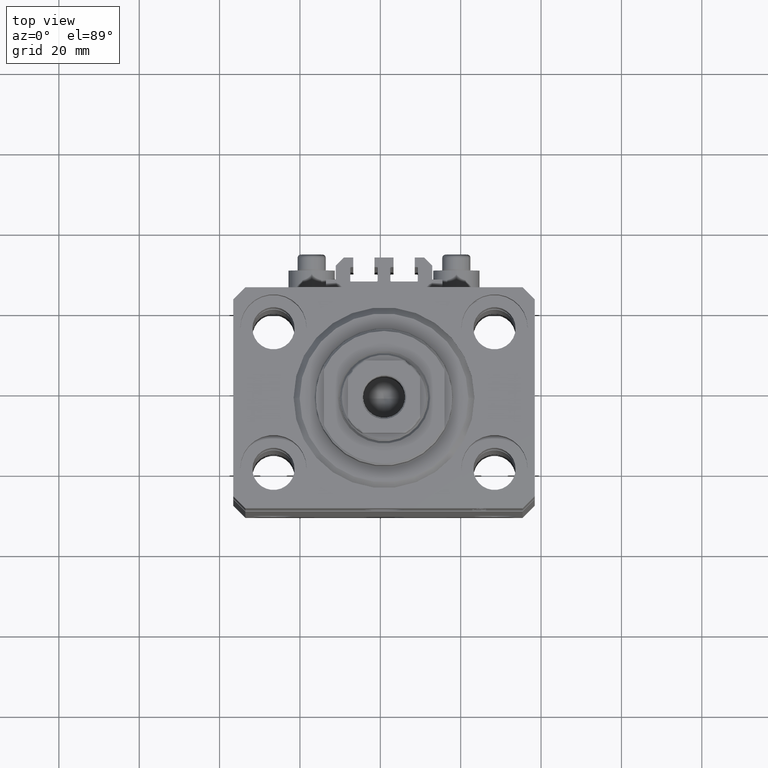
[diagram: clean part render]
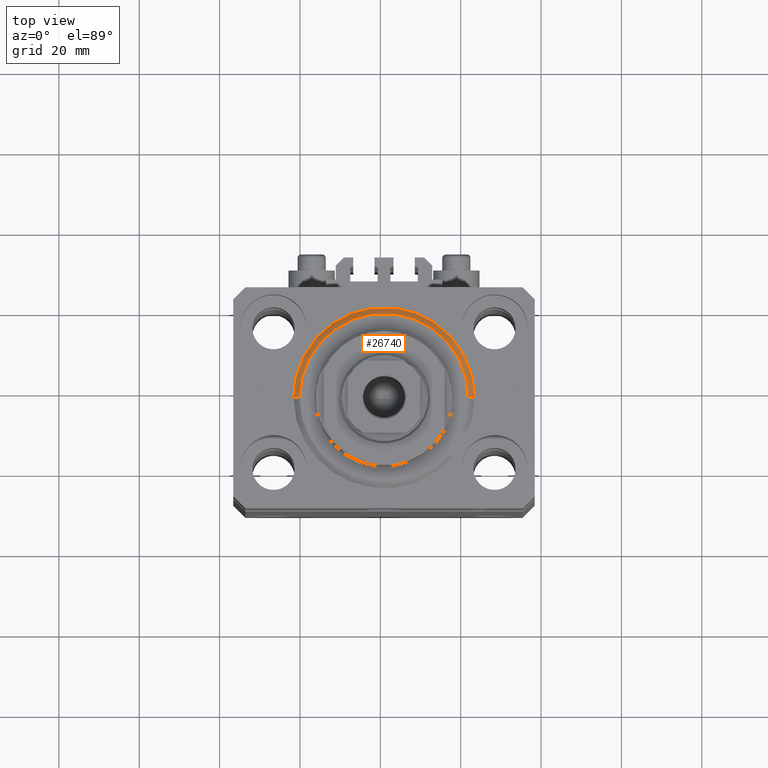
[diagram: same view with one face highlighted and labeled with its STEP entity id]
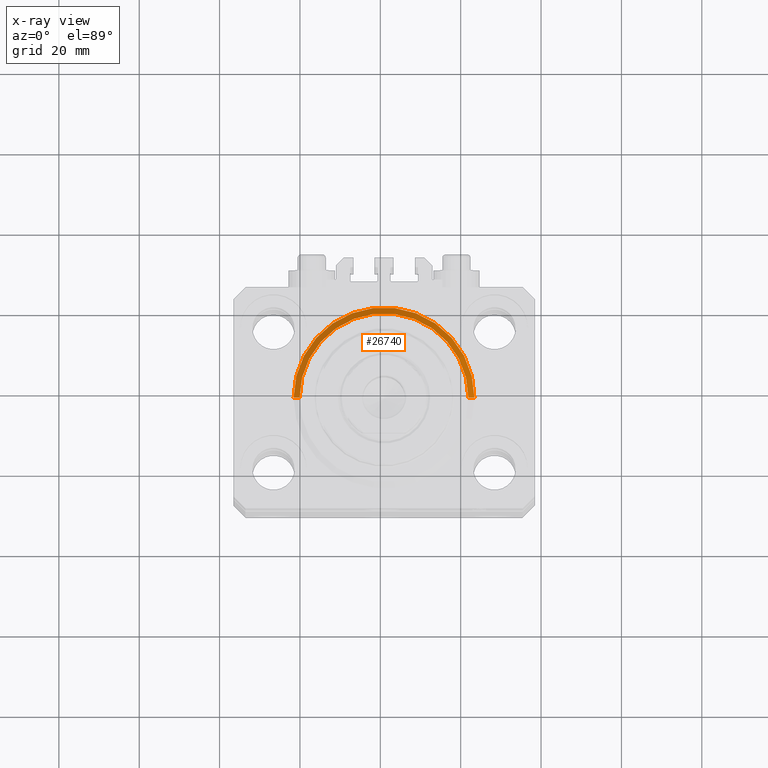
[diagram: x-ray of the same camera — body ghosted, the highlighted face saturated]
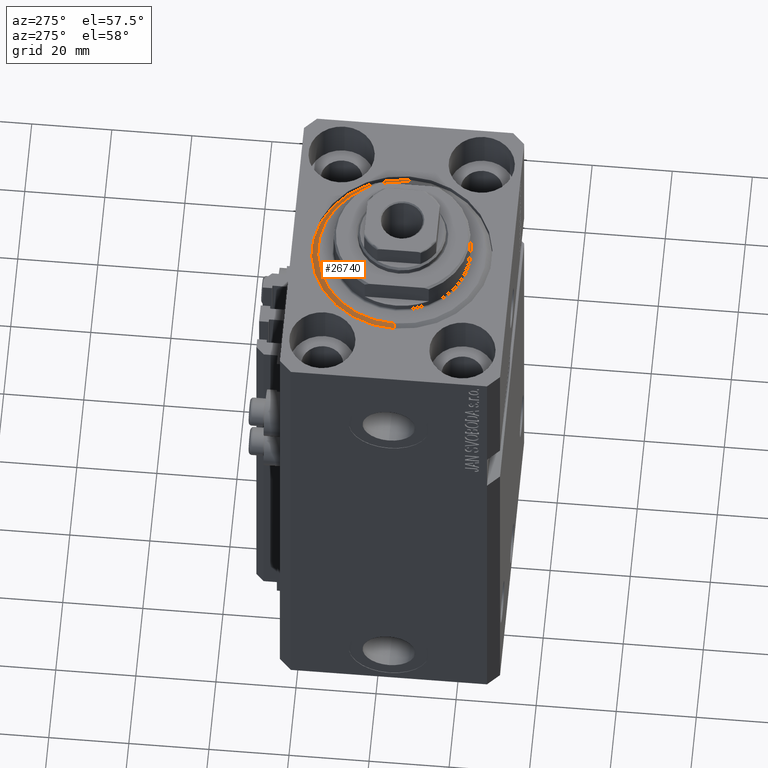
[diagram: same view with one face highlighted and labeled with its STEP entity id]
A machine part, top view. The second image highlights one B-rep face of the part: STEP entity #26740.
The next image is the same camera in x-ray: the body ghosted, the highlighted face saturated — about 0% of this face is hidden behind the body in this view.
A second angle (auxiliary view) of the same face is appended — the face is thin or edge-on in the first view.
In plain terms, the highlighted conical surface has half-angle 45 deg.
Its self-contained STEP definition (entity closure, byte-faithful):
#393 = LINE ( 'NONE', #14797, #47198 ) ;
#1364 = LINE ( 'NONE', #8797, #14626 ) ;
#2914 = CARTESIAN_POINT ( 'NONE',  ( -22.50000000000000355, 0.000000000000000000, 1.500000000000001332 ) ) ;
#5280 = EDGE_LOOP ( 'NONE', ( #21589, #8497, #23133, #29166 ) ) ;
#6578 = EDGE_CURVE ( 'NONE', #7278, #12711, #18448, .T. ) ;
#6993 = CARTESIAN_POINT ( 'NONE',  ( 0.000000000000000000, 0.000000000000000000, 1.500000000000001332 ) ) ;
#7278 = VERTEX_POINT ( 'NONE', #14077 ) ;
#7584 = CARTESIAN_POINT ( 'NONE',  ( -20.99999999999998934, 2.663606788145492628E-15, 0.000000000000000000 ) ) ;
#8497 = ORIENTED_EDGE ( 'NONE', *, *, #21750, .T. ) ;
#8797 = CARTESIAN_POINT ( 'NONE',  ( 22.50000000000000355, 0.000000000000000000, 1.500000000000001332 ) ) ;
#9032 = CONICAL_SURFACE ( 'NONE', #13675, 22.50000000000000355, 0.7853981633974517207 ) ;
#11539 = EDGE_CURVE ( 'NONE', #14766, #21122, #19342, .T. ) ;
#12711 = VERTEX_POINT ( 'NONE', #2914 ) ;
#13675 = AXIS2_PLACEMENT_3D ( 'NONE', #33182, #44226, #15193 ) ;
#14077 = CARTESIAN_POINT ( 'NONE',  ( 22.50000000000000355, 2.755455298081545172E-15, 1.500000000000001332 ) ) ;
#14626 = VECTOR ( 'NONE', #45020, 1000.000000000000114 ) ;
#14766 = VERTEX_POINT ( 'NONE', #7584 ) ;
#14797 = CARTESIAN_POINT ( 'NONE',  ( -22.50000000000000355, 2.755455298081545172E-15, 1.500000000000001332 ) ) ;
#15193 = DIRECTION ( 'NONE',  ( 1.000000000000000000, 0.000000000000000000, 0.000000000000000000 ) ) ;
#16517 = DIRECTION ( 'NONE',  ( 1.000000000000000000, 0.000000000000000000, 0.000000000000000000 ) ) ;
#18448 = CIRCLE ( 'NONE', #30689, 22.50000000000000355 ) ;
#19342 = CIRCLE ( 'NONE', #22437, 20.99999999999998934 ) ;
#21122 = VERTEX_POINT ( 'NONE', #39905 ) ;
#21589 = ORIENTED_EDGE ( 'NONE', *, *, #11539, .F. ) ;
#21750 = EDGE_CURVE ( 'NONE', #14766, #12711, #393, .T. ) ;
#22437 = AXIS2_PLACEMENT_3D ( 'NONE', #31854, #39046, #16517 ) ;
#22845 = FACE_OUTER_BOUND ( 'NONE', #5280, .T. ) ;
#23133 = ORIENTED_EDGE ( 'NONE', *, *, #6578, .F. ) ;
#25215 = DIRECTION ( 'NONE',  ( 1.000000000000000000, 0.000000000000000000, 0.000000000000000000 ) ) ;
#26740 = ADVANCED_FACE ( 'NONE', ( #22845 ), #9032, .T. ) ;
#29166 = ORIENTED_EDGE ( 'NONE', *, *, #30788, .F. ) ;
#30689 = AXIS2_PLACEMENT_3D ( 'NONE', #6993, #47289, #25215 ) ;
#30788 = EDGE_CURVE ( 'NONE', #21122, #7278, #1364, .T. ) ;
#31854 = CARTESIAN_POINT ( 'NONE',  ( 0.000000000000000000, 0.000000000000000000, 0.000000000000000000 ) ) ;
#33182 = CARTESIAN_POINT ( 'NONE',  ( 0.000000000000000000, 0.000000000000000000, 1.500000000000001332 ) ) ;
#39046 = DIRECTION ( 'NONE',  ( -0.000000000000000000, -0.000000000000000000, -1.000000000000000000 ) ) ;
#39905 = CARTESIAN_POINT ( 'NONE',  ( 20.99999999999998934, 0.000000000000000000, 0.000000000000000000 ) ) ;
#44059 = DIRECTION ( 'NONE',  ( -0.7071067811865500152, 8.659560562354963673E-17, 0.7071067811865451302 ) ) ;
#44226 = DIRECTION ( 'NONE',  ( -0.000000000000000000, -0.000000000000000000, 1.000000000000000000 ) ) ;
#45020 = DIRECTION ( 'NONE',  ( 0.7071067811865500152, 0.000000000000000000, 0.7071067811865451302 ) ) ;
#47198 = VECTOR ( 'NONE', #44059, 1000.000000000000114 ) ;
#47289 = DIRECTION ( 'NONE',  ( -0.000000000000000000, -0.000000000000000000, 1.000000000000000000 ) ) ;